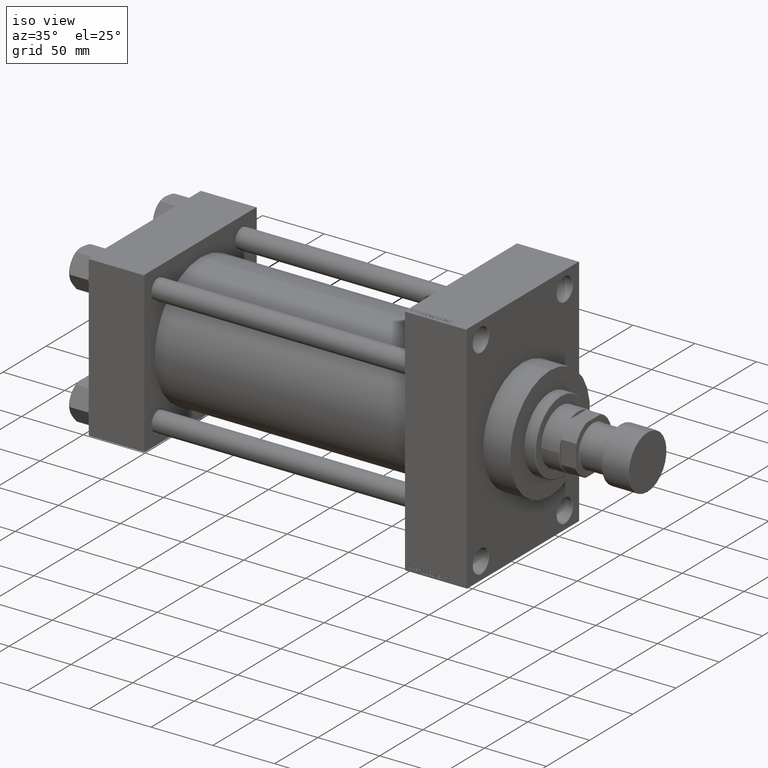
[diagram: clean part render]
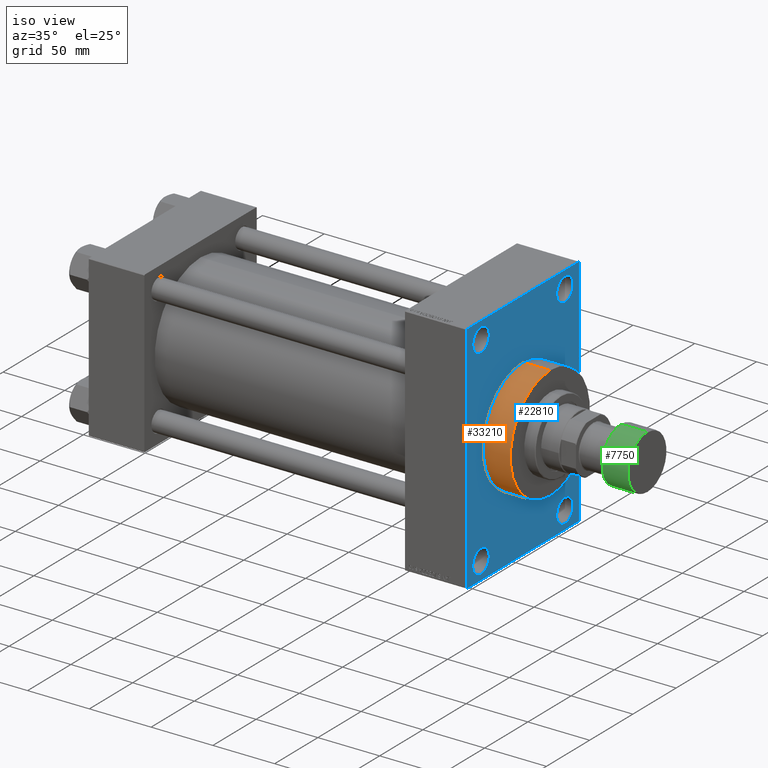
[diagram: same view with three faces highlighted in distinct colors, each labeled with its STEP entity id]
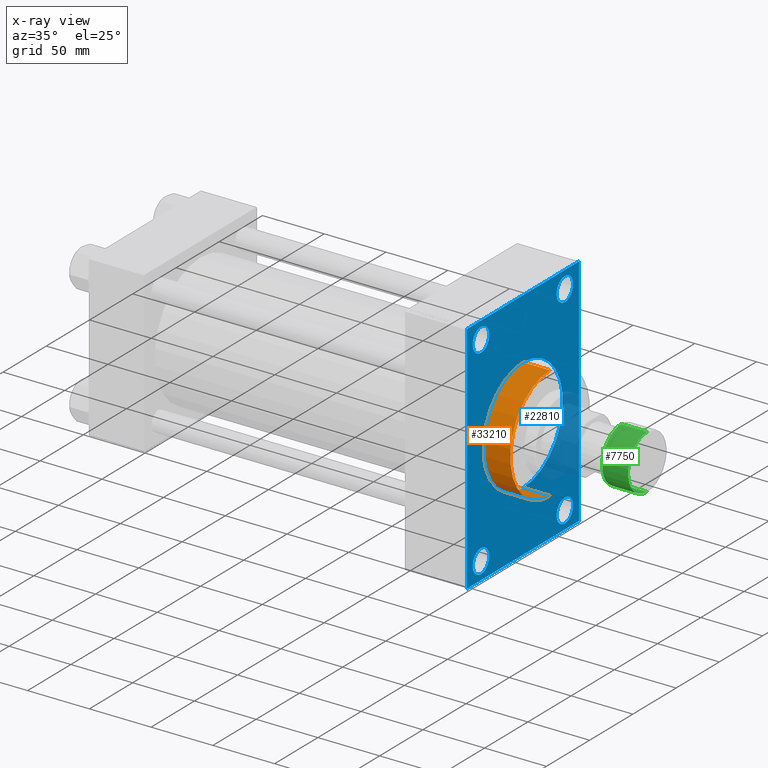
[diagram: x-ray of the same camera — body ghosted, the three highlighted faces saturated]
A machine part, iso view with three faces highlighted in distinct colors.
The next image is the same camera in x-ray (body ghosted, the three faces saturated) — at least one of them is partly hidden behind the body in this view.
Their STEP definitions:

[orange] entity #33210 — the highlighted cylindrical surface (partial cylindrical patch) has radius 46 mm, axis along (-1, -0, -0).
#324 = CARTESIAN_POINT ( 'NONE',  ( 328.0000000000000000, 0.000000000000000000, 46.00000000000000000 ) ) ;
#427 = CARTESIAN_POINT ( 'NONE',  ( 306.0000000000000000, 0.000000000000000000, 0.000000000000000000 ) ) ;
#497 = ORIENTED_EDGE ( 'NONE', *, *, #10991, .F. ) ;
#1291 = ORIENTED_EDGE ( 'NONE', *, *, #35263, .F. ) ;
#4610 = CARTESIAN_POINT ( 'NONE',  ( 328.0000000000000000, 5.633375276077824704E-15, -46.00000000000000000 ) ) ;
#4727 = DIRECTION ( 'NONE',  ( -1.000000000000000000, -0.000000000000000000, -0.000000000000000000 ) ) ;
#5369 = EDGE_LOOP ( 'NONE', ( #497, #1291, #46718, #17883 ) ) ;
#5503 = DIRECTION ( 'NONE',  ( 1.000000000000000000, 0.000000000000000000, 0.000000000000000000 ) ) ;
#9681 = CIRCLE ( 'NONE', #20583, 46.00000000000000000 ) ;
#10587 = CARTESIAN_POINT ( 'NONE',  ( 328.0000000000000000, 5.633375276077824704E-15, -46.00000000000000000 ) ) ;
#10801 = VECTOR ( 'NONE', #34505, 1000.000000000000000 ) ;
#10991 = EDGE_CURVE ( 'NONE', #21185, #17052, #23103, .T. ) ;
#13932 = DIRECTION ( 'NONE',  ( -1.000000000000000000, -0.000000000000000000, -0.000000000000000000 ) ) ;
#14169 = LINE ( 'NONE', #43819, #19125 ) ;
#15023 = CARTESIAN_POINT ( 'NONE',  ( 328.0000000000000000, 0.000000000000000000, 0.000000000000000000 ) ) ;
#17020 = VERTEX_POINT ( 'NONE', #324 ) ;
#17052 = VERTEX_POINT ( 'NONE', #38006 ) ;
#17295 = AXIS2_PLACEMENT_3D ( 'NONE', #427, #23046, #19396 ) ;
#17883 = ORIENTED_EDGE ( 'NONE', *, *, #29395, .T. ) ;
#19125 = VECTOR ( 'NONE', #13932, 1000.000000000000000 ) ;
#19396 = DIRECTION ( 'NONE',  ( 0.000000000000000000, 0.000000000000000000, -1.000000000000000000 ) ) ;
#20093 = DIRECTION ( 'NONE',  ( 0.000000000000000000, 0.000000000000000000, -1.000000000000000000 ) ) ;
#20583 = AXIS2_PLACEMENT_3D ( 'NONE', #15023, #5503, #20093 ) ;
#21185 = VERTEX_POINT ( 'NONE', #10587 ) ;
#23046 = DIRECTION ( 'NONE',  ( 1.000000000000000000, 0.000000000000000000, 0.000000000000000000 ) ) ;
#23103 = LINE ( 'NONE', #4610, #10801 ) ;
#28165 = CIRCLE ( 'NONE', #17295, 46.00000000000000000 ) ;
#28258 = AXIS2_PLACEMENT_3D ( 'NONE', #30733, #4727, #35116 ) ;
#29395 = EDGE_CURVE ( 'NONE', #29637, #17052, #28165, .T. ) ;
#29637 = VERTEX_POINT ( 'NONE', #36373 ) ;
#30509 = CYLINDRICAL_SURFACE ( 'NONE', #28258, 46.00000000000000000 ) ;
#30733 = CARTESIAN_POINT ( 'NONE',  ( 328.0000000000000000, 0.000000000000000000, 0.000000000000000000 ) ) ;
#33210 = ADVANCED_FACE ( 'NONE', ( #34391 ), #30509, .T. ) ;
#34391 = FACE_OUTER_BOUND ( 'NONE', #5369, .T. ) ;
#34505 = DIRECTION ( 'NONE',  ( -1.000000000000000000, -0.000000000000000000, -0.000000000000000000 ) ) ;
#35116 = DIRECTION ( 'NONE',  ( 0.000000000000000000, 0.000000000000000000, 1.000000000000000000 ) ) ;
#35263 = EDGE_CURVE ( 'NONE', #17020, #21185, #9681, .T. ) ;
#36373 = CARTESIAN_POINT ( 'NONE',  ( 306.0000000000000000, 0.000000000000000000, 46.00000000000000000 ) ) ;
#38006 = CARTESIAN_POINT ( 'NONE',  ( 306.0000000000000000, 5.633375276077824704E-15, -46.00000000000000000 ) ) ;
#40804 = EDGE_CURVE ( 'NONE', #17020, #29637, #14169, .T. ) ;
#43819 = CARTESIAN_POINT ( 'NONE',  ( 328.0000000000000000, 0.000000000000000000, 46.00000000000000000 ) ) ;
#46718 = ORIENTED_EDGE ( 'NONE', *, *, #40804, .T. ) ;

[blue] entity #22810 — the highlighted planar face has unit normal (-1, 0, 0).
#427 = CARTESIAN_POINT ( 'NONE',  ( 306.0000000000000000, 0.000000000000000000, 0.000000000000000000 ) ) ;
#1514 = AXIS2_PLACEMENT_3D ( 'NONE', #27780, #38962, #35301 ) ;
#1783 = DIRECTION ( 'NONE',  ( 0.000000000000000000, 0.7071067811865868746, -0.7071067811865081598 ) ) ;
#2031 = ORIENTED_EDGE ( 'NONE', *, *, #16239, .T. ) ;
#2368 = CARTESIAN_POINT ( 'NONE',  ( 306.0000000000000000, -65.00000000000001421, 94.49999999999997158 ) ) ;
#2628 = ORIENTED_EDGE ( 'NONE', *, *, #11838, .T. ) ;
#2690 = FACE_OUTER_BOUND ( 'NONE', #22390, .T. ) ;
#3290 = CARTESIAN_POINT ( 'NONE',  ( 306.0000000000000000, -48.50000000000000000, 90.50000000000007105 ) ) ;
#3318 = EDGE_CURVE ( 'NONE', #10475, #46598, #11335, .T. ) ;
#3347 = CIRCLE ( 'NONE', #37550, 9.500000000000063949 ) ;
#3548 = DIRECTION ( 'NONE',  ( 0.000000000000000000, 0.000000000000000000, -1.000000000000000000 ) ) ;
#3788 = VERTEX_POINT ( 'NONE', #44537 ) ;
#4174 = VERTEX_POINT ( 'NONE', #29634 ) ;
#4780 = ORIENTED_EDGE ( 'NONE', *, *, #17255, .T. ) ;
#5129 = EDGE_CURVE ( 'NONE', #17052, #29637, #27708, .T. ) ;
#5823 = EDGE_LOOP ( 'NONE', ( #43511, #13926 ) ) ;
#6076 = VECTOR ( 'NONE', #12011, 1000.000000000000000 ) ;
#6147 = ORIENTED_EDGE ( 'NONE', *, *, #45043, .T. ) ;
#6556 = DIRECTION ( 'NONE',  ( 0.000000000000000000, 0.000000000000000000, 1.000000000000000000 ) ) ;
#6843 = AXIS2_PLACEMENT_3D ( 'NONE', #46941, #13633, #6556 ) ;
#6931 = VECTOR ( 'NONE', #1783, 1000.000000000000000 ) ;
#7131 = EDGE_CURVE ( 'NONE', #3788, #4174, #16248, .T. ) ;
#8128 = LINE ( 'NONE', #29541, #39101 ) ;
#8341 = DIRECTION ( 'NONE',  ( 0.000000000000000000, 0.000000000000000000, 1.000000000000000000 ) ) ;
#8417 = EDGE_CURVE ( 'NONE', #25263, #27962, #44612, .T. ) ;
#8534 = CIRCLE ( 'NONE', #1514, 9.500000000000119016 ) ;
#9151 = DIRECTION ( 'NONE',  ( -0.000000000000000000, 0.7071067811865573427, 0.7071067811865378028 ) ) ;
#9341 = LINE ( 'NONE', #27590, #45055 ) ;
#9521 = CARTESIAN_POINT ( 'NONE',  ( 306.0000000000000000, 0.000000000000000000, 0.000000000000000000 ) ) ;
#9631 = CARTESIAN_POINT ( 'NONE',  ( 306.0000000000000000, 64.99999999999998579, -94.50000000000002842 ) ) ;
#9633 = VERTEX_POINT ( 'NONE', #38751 ) ;
#10243 = PLANE ( 'NONE',  #17959 ) ;
#10445 = CIRCLE ( 'NONE', #18992, 9.500000000000063949 ) ;
#10475 = VERTEX_POINT ( 'NONE', #32065 ) ;
#10478 = VECTOR ( 'NONE', #36658, 1000.000000000000000 ) ;
#10983 = CARTESIAN_POINT ( 'NONE',  ( 306.0000000000000000, 64.99999999999998579, -94.50000000000002842 ) ) ;
#11183 = CARTESIAN_POINT ( 'NONE',  ( 306.0000000000000000, 48.50000000000000711, -71.49999999999990052 ) ) ;
#11235 = CARTESIAN_POINT ( 'NONE',  ( 306.0000000000000000, 64.49999999999998579, -95.00000000000001421 ) ) ;
#11335 = CIRCLE ( 'NONE', #38495, 9.500000000000119016 ) ;
#11406 = AXIS2_PLACEMENT_3D ( 'NONE', #36872, #37361, #3548 ) ;
#11838 = EDGE_CURVE ( 'NONE', #28873, #19502, #27093, .T. ) ;
#11921 = CIRCLE ( 'NONE', #25104, 9.500000000000119016 ) ;
#12011 = DIRECTION ( 'NONE',  ( 0.000000000000000000, 7.304098846218135653E-17, -1.000000000000000000 ) ) ;
#12139 = DIRECTION ( 'NONE',  ( 0.000000000000000000, 0.000000000000000000, 1.000000000000000000 ) ) ;
#12862 = CARTESIAN_POINT ( 'NONE',  ( 306.0000000000000000, 48.50000000000000711, 81.00000000000000000 ) ) ;
#12885 = CARTESIAN_POINT ( 'NONE',  ( 306.0000000000000000, 48.50000000000000711, 71.49999999999994316 ) ) ;
#13050 = AXIS2_PLACEMENT_3D ( 'NONE', #17887, #43179, #17646 ) ;
#13633 = DIRECTION ( 'NONE',  ( -1.000000000000000000, 0.000000000000000000, -0.000000000000000000 ) ) ;
#13804 = VERTEX_POINT ( 'NONE', #18034 ) ;
#13926 = ORIENTED_EDGE ( 'NONE', *, *, #34381, .T. ) ;
#13944 = VERTEX_POINT ( 'NONE', #12885 ) ;
#14039 = AXIS2_PLACEMENT_3D ( 'NONE', #23175, #34113, #8341 ) ;
#14848 = VERTEX_POINT ( 'NONE', #3290 ) ;
#14918 = CARTESIAN_POINT ( 'NONE',  ( 306.0000000000000000, -48.49999999999999289, -71.49999999999990052 ) ) ;
#15107 = VERTEX_POINT ( 'NONE', #23397 ) ;
#15148 = CARTESIAN_POINT ( 'NONE',  ( 306.0000000000000000, -65.00000000000001421, -94.50000000000008527 ) ) ;
#15825 = VERTEX_POINT ( 'NONE', #43390 ) ;
#16239 = EDGE_CURVE ( 'NONE', #46598, #10475, #8534, .T. ) ;
#16248 = LINE ( 'NONE', #2368, #20808 ) ;
#16722 = DIRECTION ( 'NONE',  ( -0.000000000000000000, -0.7071067811864985009, -0.7071067811865965336 ) ) ;
#16982 = CARTESIAN_POINT ( 'NONE',  ( 306.0000000000000000, 64.99999999999997158, 94.99999999999997158 ) ) ;
#17052 = VERTEX_POINT ( 'NONE', #38006 ) ;
#17057 = DIRECTION ( 'NONE',  ( -1.000000000000000000, 0.000000000000000000, -0.000000000000000000 ) ) ;
#17210 = DIRECTION ( 'NONE',  ( -1.000000000000000000, 0.000000000000000000, -0.000000000000000000 ) ) ;
#17255 = EDGE_CURVE ( 'NONE', #25263, #13804, #9341, .T. ) ;
#17295 = AXIS2_PLACEMENT_3D ( 'NONE', #427, #23046, #19396 ) ;
#17646 = DIRECTION ( 'NONE',  ( 0.000000000000000000, 0.000000000000000000, 1.000000000000000000 ) ) ;
#17788 = FACE_BOUND ( 'NONE', #21242, .T. ) ;
#17887 = CARTESIAN_POINT ( 'NONE',  ( 306.0000000000000000, -48.49999999999999289, -81.00000000000001421 ) ) ;
#17959 = AXIS2_PLACEMENT_3D ( 'NONE', #9521, #17057, #43073 ) ;
#18034 = CARTESIAN_POINT ( 'NONE',  ( 306.0000000000000000, 64.49999999999997158, 94.99999999999997158 ) ) ;
#18353 = EDGE_CURVE ( 'NONE', #15107, #13944, #25684, .T. ) ;
#18421 = DIRECTION ( 'NONE',  ( 0.000000000000000000, 0.000000000000000000, 1.000000000000000000 ) ) ;
#18505 = ORIENTED_EDGE ( 'NONE', *, *, #3318, .T. ) ;
#18850 = CARTESIAN_POINT ( 'NONE',  ( 306.0000000000000000, 64.99999999999997158, 94.99999999999997158 ) ) ;
#18992 = AXIS2_PLACEMENT_3D ( 'NONE', #23023, #40539, #18421 ) ;
#19324 = VECTOR ( 'NONE', #9151, 1000.000000000000000 ) ;
#19396 = DIRECTION ( 'NONE',  ( 0.000000000000000000, 0.000000000000000000, -1.000000000000000000 ) ) ;
#19502 = VERTEX_POINT ( 'NONE', #21453 ) ;
#20785 = CIRCLE ( 'NONE', #13050, 9.500000000000119016 ) ;
#20808 = VECTOR ( 'NONE', #16722, 1000.000000000000114 ) ;
#21242 = EDGE_LOOP ( 'NONE', ( #46726, #6147 ) ) ;
#21254 = EDGE_CURVE ( 'NONE', #15825, #26278, #11921, .T. ) ;
#21317 = EDGE_CURVE ( 'NONE', #46339, #19502, #8128, .T. ) ;
#21453 = CARTESIAN_POINT ( 'NONE',  ( 306.0000000000000000, -64.50000000000001421, -95.00000000000002842 ) ) ;
#21835 = CARTESIAN_POINT ( 'NONE',  ( 306.0000000000000000, -65.00000000000001421, 94.99999999999997158 ) ) ;
#22390 = EDGE_LOOP ( 'NONE', ( #39281, #2628, #44953, #36541, #25312, #4780, #22399, #27352 ) ) ;
#22399 = ORIENTED_EDGE ( 'NONE', *, *, #25223, .T. ) ;
#22810 = ADVANCED_FACE ( 'NONE', ( #39898, #17788, #28247, #47445, #36013, #2690 ), #10243, .F. ) ;
#23023 = CARTESIAN_POINT ( 'NONE',  ( 306.0000000000000000, -48.50000000000000000, 81.00000000000000000 ) ) ;
#23046 = DIRECTION ( 'NONE',  ( 1.000000000000000000, 0.000000000000000000, 0.000000000000000000 ) ) ;
#23175 = CARTESIAN_POINT ( 'NONE',  ( 306.0000000000000000, 48.50000000000000711, 81.00000000000000000 ) ) ;
#23397 = CARTESIAN_POINT ( 'NONE',  ( 306.0000000000000000, 48.50000000000000711, 90.50000000000007105 ) ) ;
#24101 = ORIENTED_EDGE ( 'NONE', *, *, #31685, .T. ) ;
#24934 = EDGE_LOOP ( 'NONE', ( #18505, #2031 ) ) ;
#25104 = AXIS2_PLACEMENT_3D ( 'NONE', #39776, #32233, #47080 ) ;
#25223 = EDGE_CURVE ( 'NONE', #13804, #3788, #47133, .T. ) ;
#25263 = VERTEX_POINT ( 'NONE', #25471 ) ;
#25312 = ORIENTED_EDGE ( 'NONE', *, *, #8417, .F. ) ;
#25471 = CARTESIAN_POINT ( 'NONE',  ( 306.0000000000000000, 64.99999999999997158, 94.50000000000002842 ) ) ;
#25684 = CIRCLE ( 'NONE', #14039, 9.500000000000063949 ) ;
#25898 = DIRECTION ( 'NONE',  ( 0.000000000000000000, -1.000000000000000000, -1.067522139062650425E-16 ) ) ;
#26278 = VERTEX_POINT ( 'NONE', #14918 ) ;
#27093 = LINE ( 'NONE', #41925, #6931 ) ;
#27352 = ORIENTED_EDGE ( 'NONE', *, *, #7131, .T. ) ;
#27590 = CARTESIAN_POINT ( 'NONE',  ( 306.0000000000000000, 64.49999999999997158, 94.99999999999997158 ) ) ;
#27695 = DIRECTION ( 'NONE',  ( -1.000000000000000000, 0.000000000000000000, -0.000000000000000000 ) ) ;
#27708 = CIRCLE ( 'NONE', #11406, 46.00000000000000000 ) ;
#27780 = CARTESIAN_POINT ( 'NONE',  ( 306.0000000000000000, 48.50000000000000711, -81.00000000000001421 ) ) ;
#27915 = CARTESIAN_POINT ( 'NONE',  ( 306.0000000000000000, 48.50000000000000711, -81.00000000000001421 ) ) ;
#27962 = VERTEX_POINT ( 'NONE', #10983 ) ;
#28165 = CIRCLE ( 'NONE', #17295, 46.00000000000000000 ) ;
#28247 = FACE_BOUND ( 'NONE', #24934, .T. ) ;
#28873 = VERTEX_POINT ( 'NONE', #15148 ) ;
#29395 = EDGE_CURVE ( 'NONE', #29637, #17052, #28165, .T. ) ;
#29541 = CARTESIAN_POINT ( 'NONE',  ( 306.0000000000000000, 64.99999999999998579, -95.00000000000001421 ) ) ;
#29634 = CARTESIAN_POINT ( 'NONE',  ( 306.0000000000000000, -65.00000000000001421, 94.49999999999997158 ) ) ;
#29637 = VERTEX_POINT ( 'NONE', #36373 ) ;
#31194 = ORIENTED_EDGE ( 'NONE', *, *, #29395, .F. ) ;
#31206 = EDGE_LOOP ( 'NONE', ( #24101, #39858 ) ) ;
#31685 = EDGE_CURVE ( 'NONE', #13944, #15107, #3347, .T. ) ;
#31702 = CIRCLE ( 'NONE', #6843, 9.500000000000063949 ) ;
#32065 = CARTESIAN_POINT ( 'NONE',  ( 306.0000000000000000, 48.50000000000000711, -90.50000000000014211 ) ) ;
#32233 = DIRECTION ( 'NONE',  ( -1.000000000000000000, 0.000000000000000000, -0.000000000000000000 ) ) ;
#34113 = DIRECTION ( 'NONE',  ( -1.000000000000000000, 0.000000000000000000, -0.000000000000000000 ) ) ;
#34381 = EDGE_CURVE ( 'NONE', #14848, #9633, #10445, .T. ) ;
#35106 = EDGE_CURVE ( 'NONE', #4174, #28873, #44200, .T. ) ;
#35301 = DIRECTION ( 'NONE',  ( 0.000000000000000000, 0.000000000000000000, 1.000000000000000000 ) ) ;
#35453 = DIRECTION ( 'NONE',  ( 0.000000000000000000, -1.000000000000000000, 0.000000000000000000 ) ) ;
#36013 = FACE_BOUND ( 'NONE', #38040, .T. ) ;
#36373 = CARTESIAN_POINT ( 'NONE',  ( 306.0000000000000000, 0.000000000000000000, 46.00000000000000000 ) ) ;
#36541 = ORIENTED_EDGE ( 'NONE', *, *, #47943, .T. ) ;
#36658 = DIRECTION ( 'NONE',  ( 0.000000000000000000, 0.000000000000000000, -1.000000000000000000 ) ) ;
#36872 = CARTESIAN_POINT ( 'NONE',  ( 306.0000000000000000, 0.000000000000000000, 0.000000000000000000 ) ) ;
#37361 = DIRECTION ( 'NONE',  ( 1.000000000000000000, 0.000000000000000000, 0.000000000000000000 ) ) ;
#37550 = AXIS2_PLACEMENT_3D ( 'NONE', #12862, #27695, #12139 ) ;
#38006 = CARTESIAN_POINT ( 'NONE',  ( 306.0000000000000000, 5.633375276077824704E-15, -46.00000000000000000 ) ) ;
#38040 = EDGE_LOOP ( 'NONE', ( #31194, #40900 ) ) ;
#38495 = AXIS2_PLACEMENT_3D ( 'NONE', #27915, #17210, #46639 ) ;
#38751 = CARTESIAN_POINT ( 'NONE',  ( 306.0000000000000000, -48.50000000000000000, 71.49999999999994316 ) ) ;
#38962 = DIRECTION ( 'NONE',  ( -1.000000000000000000, 0.000000000000000000, -0.000000000000000000 ) ) ;
#39009 = DIRECTION ( 'NONE',  ( 0.000000000000000000, -0.7071067811865868746, 0.7071067811865081598 ) ) ;
#39101 = VECTOR ( 'NONE', #25898, 1000.000000000000000 ) ;
#39281 = ORIENTED_EDGE ( 'NONE', *, *, #35106, .T. ) ;
#39776 = CARTESIAN_POINT ( 'NONE',  ( 306.0000000000000000, -48.49999999999999289, -81.00000000000001421 ) ) ;
#39858 = ORIENTED_EDGE ( 'NONE', *, *, #18353, .T. ) ;
#39898 = FACE_BOUND ( 'NONE', #5823, .T. ) ;
#40539 = DIRECTION ( 'NONE',  ( -1.000000000000000000, 0.000000000000000000, -0.000000000000000000 ) ) ;
#40900 = ORIENTED_EDGE ( 'NONE', *, *, #5129, .F. ) ;
#41925 = CARTESIAN_POINT ( 'NONE',  ( 306.0000000000000000, -64.50000000000001421, -95.00000000000002842 ) ) ;
#43073 = DIRECTION ( 'NONE',  ( -0.000000000000000000, 0.000000000000000000, 1.000000000000000000 ) ) ;
#43179 = DIRECTION ( 'NONE',  ( -1.000000000000000000, 0.000000000000000000, -0.000000000000000000 ) ) ;
#43390 = CARTESIAN_POINT ( 'NONE',  ( 306.0000000000000000, -48.49999999999999289, -90.50000000000014211 ) ) ;
#43511 = ORIENTED_EDGE ( 'NONE', *, *, #46487, .T. ) ;
#44200 = LINE ( 'NONE', #21835, #10478 ) ;
#44537 = CARTESIAN_POINT ( 'NONE',  ( 306.0000000000000000, -64.50000000000008527, 94.99999999999997158 ) ) ;
#44612 = LINE ( 'NONE', #18850, #6076 ) ;
#44953 = ORIENTED_EDGE ( 'NONE', *, *, #21317, .F. ) ;
#45043 = EDGE_CURVE ( 'NONE', #26278, #15825, #20785, .T. ) ;
#45055 = VECTOR ( 'NONE', #39009, 1000.000000000000000 ) ;
#46001 = VECTOR ( 'NONE', #35453, 1000.000000000000000 ) ;
#46339 = VERTEX_POINT ( 'NONE', #11235 ) ;
#46487 = EDGE_CURVE ( 'NONE', #9633, #14848, #31702, .T. ) ;
#46598 = VERTEX_POINT ( 'NONE', #11183 ) ;
#46639 = DIRECTION ( 'NONE',  ( 0.000000000000000000, 0.000000000000000000, 1.000000000000000000 ) ) ;
#46726 = ORIENTED_EDGE ( 'NONE', *, *, #21254, .T. ) ;
#46841 = LINE ( 'NONE', #9631, #19324 ) ;
#46941 = CARTESIAN_POINT ( 'NONE',  ( 306.0000000000000000, -48.50000000000000000, 81.00000000000000000 ) ) ;
#47080 = DIRECTION ( 'NONE',  ( 0.000000000000000000, 0.000000000000000000, 1.000000000000000000 ) ) ;
#47133 = LINE ( 'NONE', #16982, #46001 ) ;
#47445 = FACE_BOUND ( 'NONE', #31206, .T. ) ;
#47943 = EDGE_CURVE ( 'NONE', #46339, #27962, #46841, .T. ) ;

[green] entity #7750 — the highlighted cylindrical surface (edge-blend (fillet) strip) has radius 22 mm, axis along (1, 0, 0).
#1008 = LINE ( 'NONE', #8322, #25690 ) ;
#2646 = CARTESIAN_POINT ( 'NONE',  ( 0.000000000000000000, 0.000000000000000000, -0.5000000000000004441 ) ) ;
#3129 = VERTEX_POINT ( 'NONE', #18705 ) ;
#3162 = EDGE_CURVE ( 'NONE', #38087, #3129, #3365, .T. ) ;
#3365 = LINE ( 'NONE', #18214, #37736 ) ;
#3565 = AXIS2_PLACEMENT_3D ( 'NONE', #2646, #28441, #35722 ) ;
#4134 = EDGE_CURVE ( 'NONE', #4445, #3129, #37771, .T. ) ;
#4445 = VERTEX_POINT ( 'NONE', #24976 ) ;
#5631 = DIRECTION ( 'NONE',  ( 0.000000000000000000, 0.000000000000000000, 1.000000000000000000 ) ) ;
#6512 = ORIENTED_EDGE ( 'NONE', *, *, #11356, .T. ) ;
#6848 = DIRECTION ( 'NONE',  ( 0.000000000000000000, 0.000000000000000000, 1.000000000000000000 ) ) ;
#7750 = ADVANCED_FACE ( 'NONE', ( #14170 ), #10510, .T. ) ;
#8322 = CARTESIAN_POINT ( 'NONE',  ( 22.00000000000000000, 0.000000000000000000, -22.00000000000000000 ) ) ;
#8338 = CARTESIAN_POINT ( 'NONE',  ( 22.00000000000000000, 0.000000000000000000, -21.50000000000000000 ) ) ;
#10510 = CYLINDRICAL_SURFACE ( 'NONE', #21567, 22.00000000000000000 ) ;
#11356 = EDGE_CURVE ( 'NONE', #38087, #38409, #27923, .T. ) ;
#14170 = FACE_OUTER_BOUND ( 'NONE', #36435, .T. ) ;
#16230 = DIRECTION ( 'NONE',  ( 0.000000000000000000, 0.000000000000000000, 1.000000000000000000 ) ) ;
#18214 = CARTESIAN_POINT ( 'NONE',  ( -22.00000000000000000, 2.694222958124176809E-15, -22.00000000000000000 ) ) ;
#18705 = CARTESIAN_POINT ( 'NONE',  ( -22.00000000000000000, 2.694222958124176809E-15, -0.5000000000000004441 ) ) ;
#19123 = ORIENTED_EDGE ( 'NONE', *, *, #22723, .T. ) ;
#21567 = AXIS2_PLACEMENT_3D ( 'NONE', #40166, #6848, #33598 ) ;
#22723 = EDGE_CURVE ( 'NONE', #38409, #4445, #1008, .T. ) ;
#23753 = DIRECTION ( 'NONE',  ( 1.000000000000000000, 0.000000000000000000, 0.000000000000000000 ) ) ;
#24976 = CARTESIAN_POINT ( 'NONE',  ( 22.00000000000000000, 0.000000000000000000, -0.5000000000000004441 ) ) ;
#25690 = VECTOR ( 'NONE', #5631, 1000.000000000000000 ) ;
#27923 = CIRCLE ( 'NONE', #46553, 22.00000000000000000 ) ;
#28441 = DIRECTION ( 'NONE',  ( -0.000000000000000000, -0.000000000000000000, -1.000000000000000000 ) ) ;
#30986 = CARTESIAN_POINT ( 'NONE',  ( -22.00000000000000000, 2.694222958124176809E-15, -21.50000000000000000 ) ) ;
#31561 = ORIENTED_EDGE ( 'NONE', *, *, #3162, .F. ) ;
#33598 = DIRECTION ( 'NONE',  ( 1.000000000000000000, 0.000000000000000000, 0.000000000000000000 ) ) ;
#33993 = ORIENTED_EDGE ( 'NONE', *, *, #4134, .T. ) ;
#35722 = DIRECTION ( 'NONE',  ( 1.000000000000000000, 0.000000000000000000, 0.000000000000000000 ) ) ;
#36435 = EDGE_LOOP ( 'NONE', ( #31561, #6512, #19123, #33993 ) ) ;
#37736 = VECTOR ( 'NONE', #44232, 1000.000000000000000 ) ;
#37771 = CIRCLE ( 'NONE', #3565, 22.00000000000000000 ) ;
#38087 = VERTEX_POINT ( 'NONE', #30986 ) ;
#38409 = VERTEX_POINT ( 'NONE', #8338 ) ;
#40166 = CARTESIAN_POINT ( 'NONE',  ( 0.000000000000000000, 0.000000000000000000, -22.00000000000000000 ) ) ;
#42005 = CARTESIAN_POINT ( 'NONE',  ( 0.000000000000000000, 0.000000000000000000, -21.50000000000000000 ) ) ;
#44232 = DIRECTION ( 'NONE',  ( 0.000000000000000000, 0.000000000000000000, 1.000000000000000000 ) ) ;
#46553 = AXIS2_PLACEMENT_3D ( 'NONE', #42005, #16230, #23753 ) ;